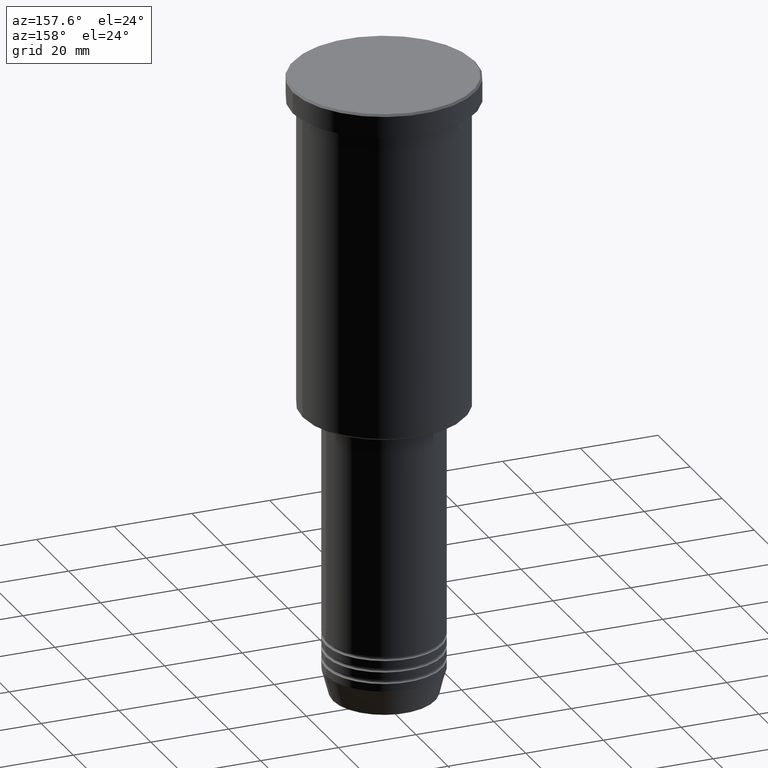
[diagram: clean part render]
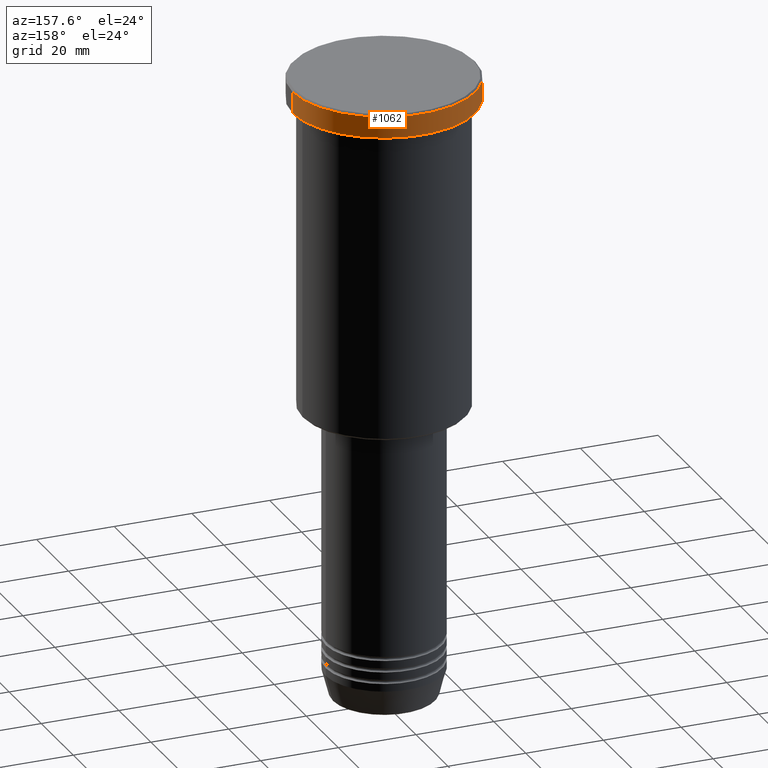
[diagram: same view with one face highlighted and labeled with its STEP entity id]
A machine part, auxiliary view. The second image highlights one B-rep face of the part: STEP entity #1062.
In plain terms, the highlighted cylindrical surface (partial cylindrical patch) has radius 23.5 mm, axis along (-0, -0, 1).
Its self-contained STEP definition (entity closure, byte-faithful):
#40 = CARTESIAN_POINT ( 'NONE',  ( -23.50000000000000000, 2.877919977996280320E-15, -0.5000000000000143219 ) ) ;
#54 = CARTESIAN_POINT ( 'NONE',  ( 23.50000000000000000, 0.000000000000000000, -5.999999999999994671 ) ) ;
#106 = DIRECTION ( 'NONE',  ( -0.000000000000000000, -0.000000000000000000, 1.000000000000000000 ) ) ;
#123 = DIRECTION ( 'NONE',  ( 1.000000000000000000, 0.000000000000000000, 0.000000000000000000 ) ) ;
#136 = VERTEX_POINT ( 'NONE', #476 ) ;
#195 = AXIS2_PLACEMENT_3D ( 'NONE', #376, #917, #123 ) ;
#206 = CARTESIAN_POINT ( 'NONE',  ( 23.50000000000000000, 0.000000000000000000, -0.5000000000000143219 ) ) ;
#248 = CIRCLE ( 'NONE', #1156, 23.50000000000000000 ) ;
#251 = EDGE_CURVE ( 'NONE', #486, #255, #248, .T. ) ;
#255 = VERTEX_POINT ( 'NONE', #206 ) ;
#295 = CARTESIAN_POINT ( 'NONE',  ( 0.000000000000000000, 0.000000000000000000, -0.5000000000000143219 ) ) ;
#369 = LINE ( 'NONE', #904, #453 ) ;
#376 = CARTESIAN_POINT ( 'NONE',  ( 0.000000000000000000, 0.000000000000000000, 0.000000000000000000 ) ) ;
#381 = CARTESIAN_POINT ( 'NONE',  ( 23.50000000000000000, 0.000000000000000000, 0.000000000000000000 ) ) ;
#388 = EDGE_CURVE ( 'NONE', #889, #136, #472, .T. ) ;
#453 = VECTOR ( 'NONE', #106, 1000.000000000000000 ) ;
#456 = CYLINDRICAL_SURFACE ( 'NONE', #195, 23.50000000000000000 ) ;
#472 = CIRCLE ( 'NONE', #826, 23.50000000000000000 ) ;
#476 = CARTESIAN_POINT ( 'NONE',  ( -23.50000000000000000, 2.877919977996280320E-15, -5.999999999999994671 ) ) ;
#486 = VERTEX_POINT ( 'NONE', #40 ) ;
#548 = FACE_OUTER_BOUND ( 'NONE', #1151, .T. ) ;
#590 = ORIENTED_EDGE ( 'NONE', *, *, #251, .T. ) ;
#652 = DIRECTION ( 'NONE',  ( -0.000000000000000000, -0.000000000000000000, 1.000000000000000000 ) ) ;
#653 = DIRECTION ( 'NONE',  ( 0.000000000000000000, 0.000000000000000000, -1.000000000000000000 ) ) ;
#658 = CARTESIAN_POINT ( 'NONE',  ( 0.000000000000000000, 0.000000000000000000, -5.999999999999994671 ) ) ;
#699 = VECTOR ( 'NONE', #652, 1000.000000000000000 ) ;
#826 = AXIS2_PLACEMENT_3D ( 'NONE', #658, #1021, #1033 ) ;
#832 = EDGE_CURVE ( 'NONE', #889, #255, #1117, .T. ) ;
#889 = VERTEX_POINT ( 'NONE', #54 ) ;
#904 = CARTESIAN_POINT ( 'NONE',  ( -23.50000000000000000, 2.877919977996280320E-15, 0.000000000000000000 ) ) ;
#917 = DIRECTION ( 'NONE',  ( -0.000000000000000000, -0.000000000000000000, 1.000000000000000000 ) ) ;
#978 = ORIENTED_EDGE ( 'NONE', *, *, #388, .T. ) ;
#992 = ORIENTED_EDGE ( 'NONE', *, *, #1012, .T. ) ;
#1012 = EDGE_CURVE ( 'NONE', #136, #486, #369, .T. ) ;
#1014 = DIRECTION ( 'NONE',  ( 1.000000000000000000, 0.000000000000000000, 0.000000000000000000 ) ) ;
#1021 = DIRECTION ( 'NONE',  ( -0.000000000000000000, -0.000000000000000000, 1.000000000000000000 ) ) ;
#1033 = DIRECTION ( 'NONE',  ( 1.000000000000000000, 0.000000000000000000, 0.000000000000000000 ) ) ;
#1062 = ADVANCED_FACE ( 'NONE', ( #548 ), #456, .T. ) ;
#1094 = ORIENTED_EDGE ( 'NONE', *, *, #832, .F. ) ;
#1117 = LINE ( 'NONE', #381, #699 ) ;
#1151 = EDGE_LOOP ( 'NONE', ( #978, #992, #590, #1094 ) ) ;
#1156 = AXIS2_PLACEMENT_3D ( 'NONE', #295, #653, #1014 ) ;